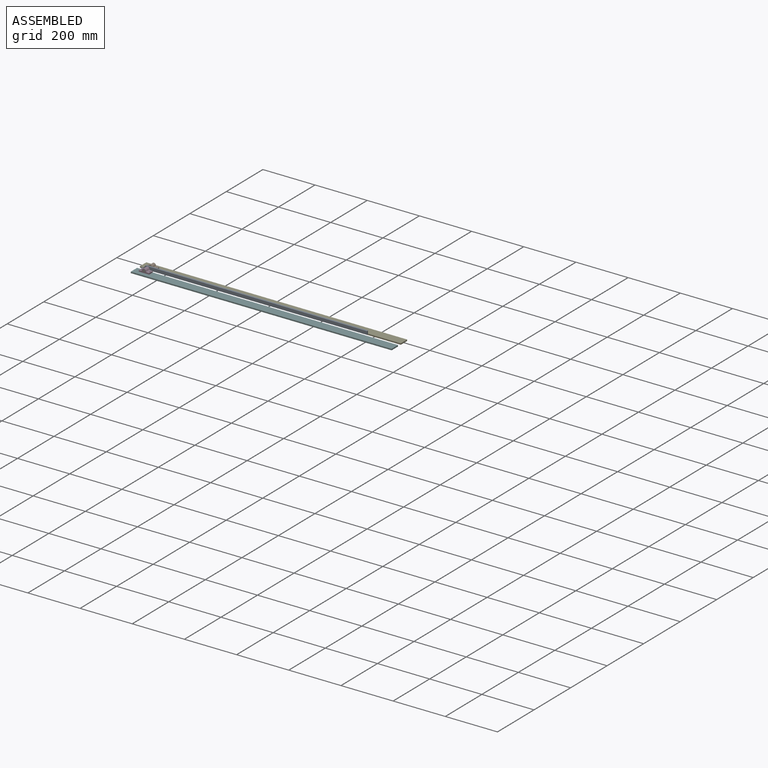
[diagram: assembled view]
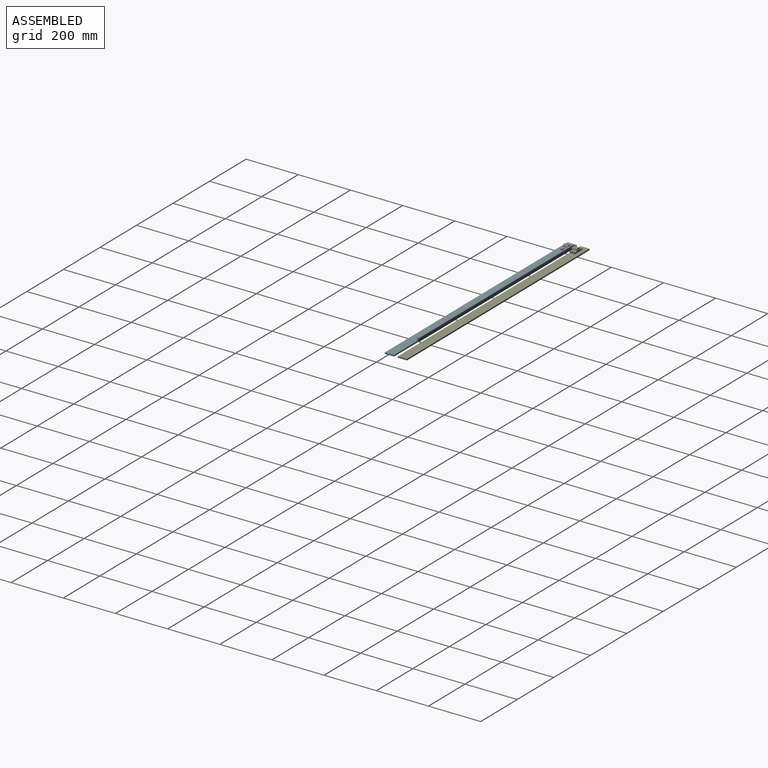
[diagram: assembled view, second angle]
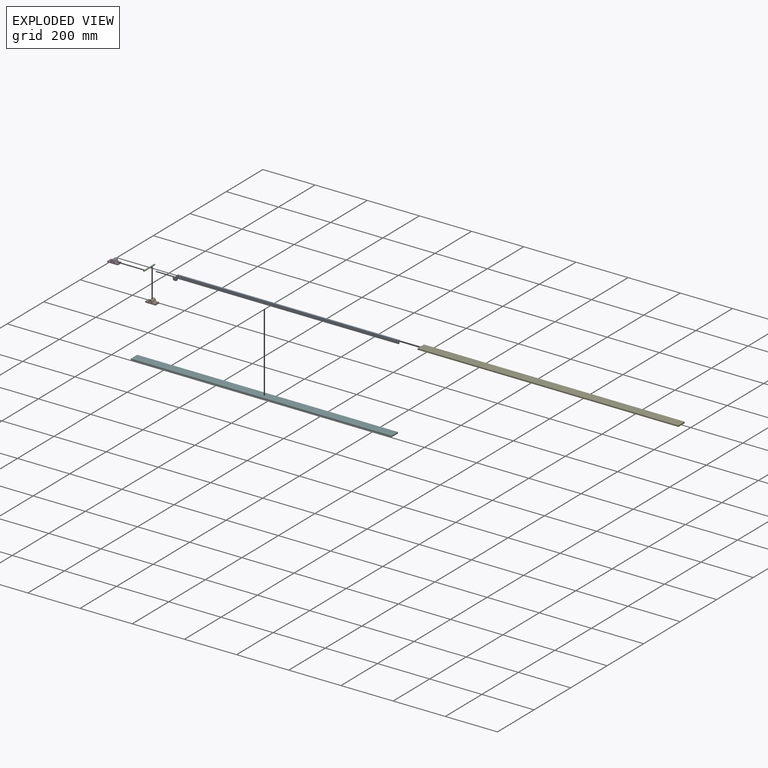
[diagram: exploded view]
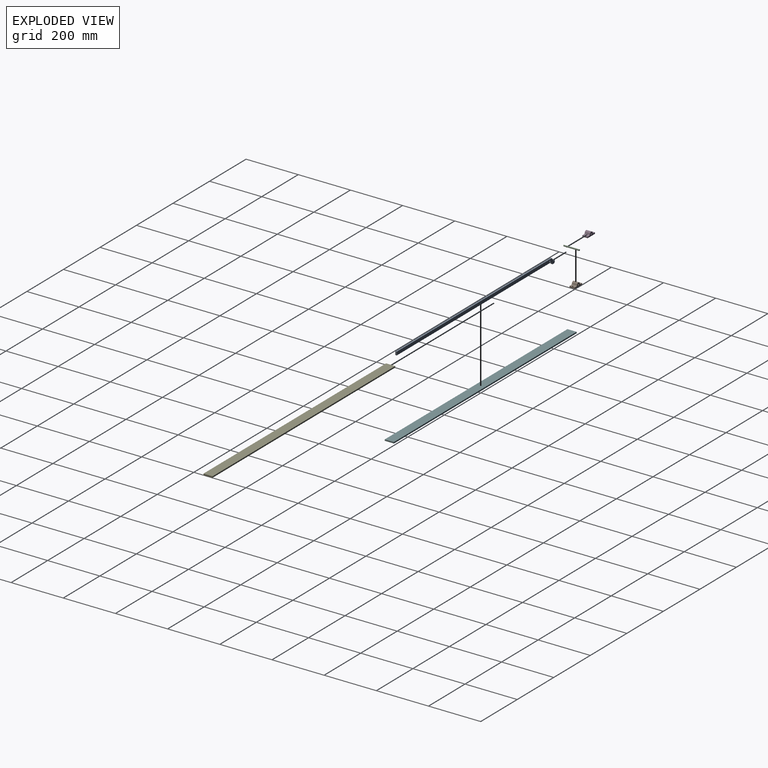
[diagram: exploded view, second angle]
ASSEMBLY  parts=6 mates=5
PART A: 16 faces, bbox 864.7x22.8x6 mm
  f0: cylinder r=4mm len=6mm, axis (0,0,-1), area 25.3mm2, adj f1,f13,f14,f15
  f1: plane 11.37x6.49mm, normal (-0.87,0.5,0), area 78.6mm2, adj f0,f2,f14,f15
  f2: plane 6x4.38mm, normal (0,1,0), area 26.3mm2, adj f1,f3,f14,f15
  f3: plane 6x2.67mm, normal (0.7,0.71,0), area 22.5mm2, adj f2,f4,f14,f15
  f4: plane 7.02x6mm, normal (-1,0,0), area 42.1mm2, adj f3,f5,f14,f15
  f5: cylinder r=5mm len=6mm, axis (0,0,-1), area 47.1mm2, adj f4,f6,f14,f15
  f6: plane 6x5.69mm, normal (0,-1,0), area 34.1mm2, adj f5,f7,f14,f15
  f7: cylinder r=4mm len=6mm, axis (0,0,-1), area 37.7mm2, adj f6,f8,f14,f15
  f8: plane 6x1mm, normal (1,0,0), area 6mm2, adj f7,f9,f14,f15
  f9: cylinder r=5mm len=6mm, axis (0,0,-1), area 47.1mm2, adj f8,f10,f14,f15
  f10: plane 845x6mm, normal (0,-1,0), area 5070mm2, adj f9,f11,f14,f15
  f11: plane 12.77x6mm, normal (1,0,0), area 76.6mm2, adj f10,f13,f14,f15
  f12: cylinder r=2.61mm len=6mm, axis (0,0,-1), area 98.4mm2, adj f14,f15
  f13: plane 847.68x6mm, normal (0,1,0), area 5086.1mm2, adj f0,f11,f14,f15
  f14: plane 864.69x22.77mm, normal (0,0,1), area 11019.4mm2, adj f0,f1,f2,f3,f4,f5,f6,f7
  f15: plane 864.69x22.77mm, normal (0,0,-1), area 11019.4mm2, adj f0,f1,f2,f3,f4,f5,f6,f7
PART B: 13 faces, bbox 40x20x15 mm
  f0: plane 20x5mm, normal (-1,0,0), area 100mm2, adj f1,f7,f9,f10
  f1: plane 40x20mm, normal (0,0,-1), area 760.7mm2, adj f0,f2,f9,f10,f11,f12
  f2: plane 20x5mm, normal (1,0,0), area 100mm2, adj f1,f3,f9,f10
  f3: plane 20x7.75mm, normal (0,0,1), area 135.4mm2, adj f2,f4,f9,f10,f11
  f4: cylinder r=5mm len=20mm, axis (0,1,0), area 136.9mm2, adj f3,f5,f9,f10
  f5: cylinder r=7.5mm len=20mm, axis (0,1,0), area 410.8mm2, adj f4,f6,f9,f10
  f6: cylinder r=5mm len=20mm, axis (0,1,0), area 136.9mm2, adj f5,f7,f9,f10
  f7: plane 20x7.75mm, normal (0,0,1), area 135.4mm2, adj f0,f6,f9,f10,f12
  f8: cylinder r=2.7mm len=20mm, axis (0,1,0), area 339.4mm2, adj f9,f10
  f9: plane 40x15mm, normal (0,-1,0), area 311.7mm2, adj f0,f1,f2,f3,f4,f5,f6,f7
  f10: plane 40x15mm, normal (0,1,0), area 311.7mm2, adj f0,f1,f2,f3,f4,f5,f6,f7
  f11: cylinder r=2.5mm len=5mm, axis (0,0,1), area 78.5mm2, adj f1,f3
  f12: cylinder r=2.5mm len=5mm, axis (0,0,1), area 78.5mm2, adj f1,f7
PART C: 3 faces, bbox 5x5x60 mm
  f0: cylinder r=2.5mm len=60mm, axis (0,0,-1), area 942.6mm2, adj f1,f2
  f1: plane 5x5mm, normal (0,0,1), area 19.6mm2, adj f0
  f2: plane 5x5mm, normal (0,0,-1), area 19.6mm2, adj f0
PART D: same geometry as B
PART E: 6 faces, bbox 1000x35x5 mm
  f0: plane 35x5mm, normal (-1,0,0), area 175mm2, adj f1,f3,f4,f5
  f1: plane 1000x5mm, normal (0,-1,0), area 5000mm2, adj f0,f2,f4,f5
  f2: plane 35x5mm, normal (1,0,0), area 175mm2, adj f1,f3,f4,f5
  f3: plane 1000x5mm, normal (0,1,0), area 5000mm2, adj f0,f2,f4,f5
  f4: plane 1000x35mm, normal (0,0,1), area 35000mm2, adj f0,f1,f2,f3
  f5: plane 1000x35mm, normal (0,0,-1), area 35000mm2, adj f0,f1,f2,f3
PART F: 6 faces, bbox 1000x35x5 mm
  f0: plane 35x5mm, normal (-1,0,0), area 175mm2, adj f1,f3,f4,f5
  f1: plane 1000x5mm, normal (0,-1,0), area 5000mm2, adj f0,f2,f4,f5
  f2: plane 35x5mm, normal (1,0,0), area 175mm2, adj f1,f3,f4,f5
  f3: plane 1000x5mm, normal (0,1,0), area 5000mm2, adj f0,f2,f4,f5
  f4: plane 1000x35mm, normal (0,0,1), area 35000mm2, adj f0,f1,f2,f3
  f5: plane 1000x35mm, normal (0,0,-1), area 35000mm2, adj f0,f1,f2,f3
PLACE A rot(axis=(1,0,0),90deg) t=(369,-179.17,354.57)mm
PLACE B t=(-79.99,74.62,9.14)mm
PLACE C rot(axis=(1,0,0),90deg) t=(-45.68,-150.17,519.97)mm
PLACE D t=(-79.99,39.62,9.14)mm
PLACE E t=(-11.28,25.4,8.9)mm
PLACE F t=(-11.28,37.4,8.9)mm
MATE cylindrical A.f12 <-> B.f5  axis (0,-1,0) through (-469.11,-185.17,21.4)mm
MATE cylindrical C.f0 <-> B.f5  axis (0,-1,0) through (-469.11,-210.17,21.4)mm
MATE parallel B.f1 <-> D.f1  axis (0,0,1) through (-489.11,-154.17,13.9)mm
MATE fastened F.f4 <-> D.f1  axis (0,0,1) through (-509.11,-189.17,13.9)mm
MATE parallel E.f0 <-> F.f0  axis (1,0,0) through (-509.11,-174.17,13.9)mm
